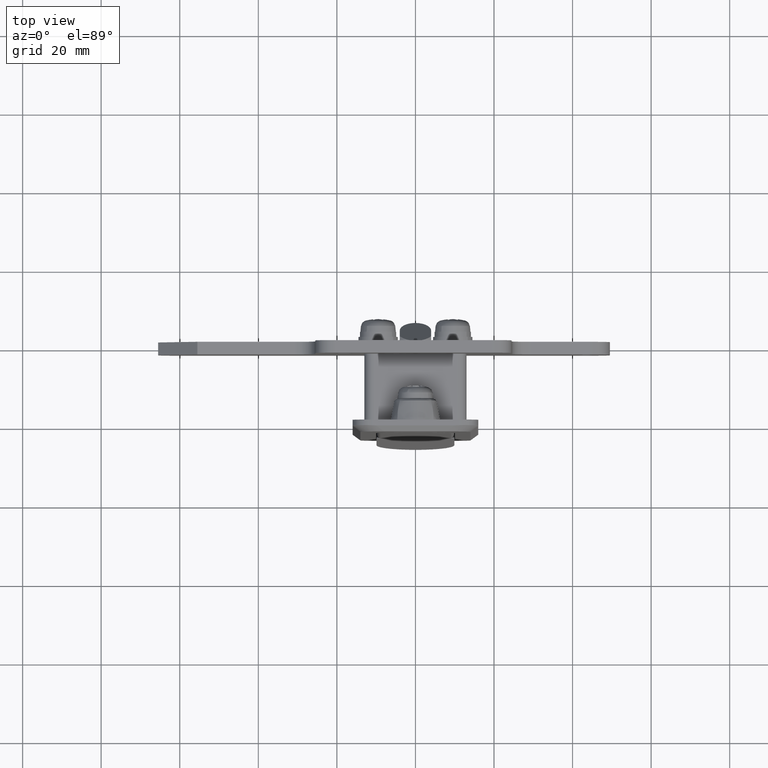
[diagram: clean part render]
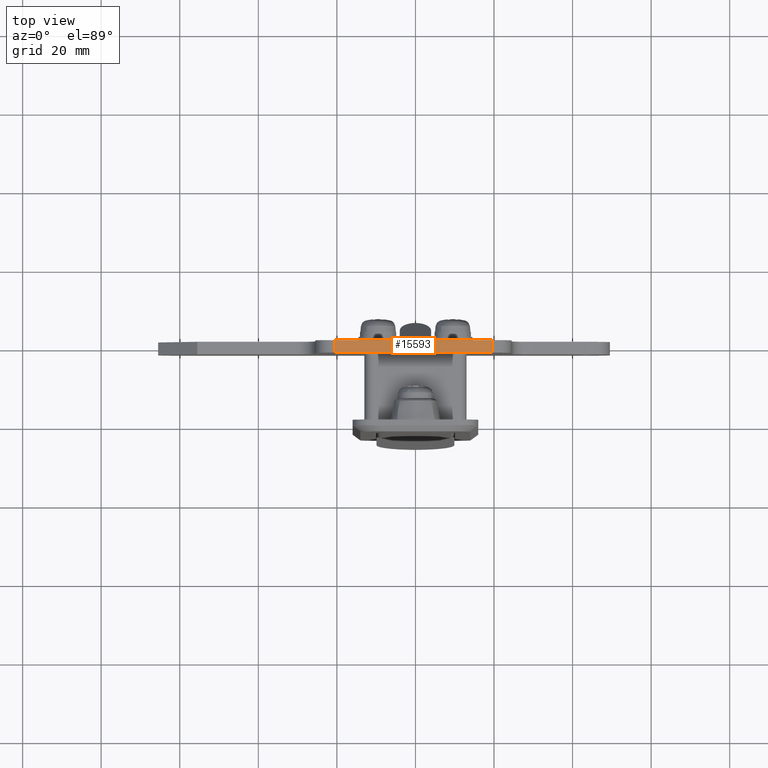
[diagram: same view with one face highlighted and labeled with its STEP entity id]
A machine part, top view. The second image highlights one B-rep face of the part: STEP entity #15593.
In plain terms, the highlighted face is a freeform B-spline surface patch.
Its self-contained STEP definition (entity closure, byte-faithful):
#15558=CARTESIAN_POINT('',(16.840159971904541,-21.497999922472239,8.0));
#15559=CARTESIAN_POINT('',(16.840159971904541,22.498000995355849,8.0));
#15560=CARTESIAN_POINT('',(20.359840800571909,-21.497999922472239,8.0));
#15561=CARTESIAN_POINT('',(20.359840800571909,22.498000995355849,8.0));
#15562=B_SPLINE_SURFACE_WITH_KNOTS('',1,1,((#15558,#15560),(#15559,#15561)),.UNSPECIFIED.,.F.,.F.,.U.,(2,2),(2,2),(0.0,43.996000917828077),(0.0,3.519680828667365),.UNSPECIFIED.);
#15563=CARTESIAN_POINT('',(17.000000000000249,20.500000000000000,8.0));
#15564=VERTEX_POINT('',#15563);
#15565=CARTESIAN_POINT('',(17.000000000000249,-19.500000000000000,8.0));
#15566=VERTEX_POINT('',#15565);
#15567=CARTESIAN_POINT('',(17.000000000000249,20.500000000000000,8.0));
#15568=CARTESIAN_POINT('',(17.000000000000249,-19.500000000000000,8.0));
#15569=QUASI_UNIFORM_CURVE('',1,(#15567,#15568),.UNSPECIFIED.,.F.,.U.);
#15570=EDGE_CURVE('',#15564,#15566,#15569,.T.);
#15571=ORIENTED_EDGE('',*,*,#15570,.T.);
#15572=CARTESIAN_POINT('',(20.199999999999999,-19.500000000000000,8.0));
#15573=VERTEX_POINT('',#15572);
#15574=CARTESIAN_POINT('',(20.199999999999999,-19.500000000000000,8.0));
#15575=CARTESIAN_POINT('',(17.000000000000249,-19.500000000000000,8.0));
#15576=QUASI_UNIFORM_CURVE('',1,(#15574,#15575),.UNSPECIFIED.,.F.,.U.);
#15577=EDGE_CURVE('',#15573,#15566,#15576,.T.);
#15578=ORIENTED_EDGE('',*,*,#15577,.F.);
#15579=CARTESIAN_POINT('',(20.199999999999999,20.500000000000000,8.0));
#15580=VERTEX_POINT('',#15579);
#15581=CARTESIAN_POINT('',(20.199999999999999,20.500000000000000,8.0));
#15582=CARTESIAN_POINT('',(20.199999999999999,-19.500000000000000,8.0));
#15583=QUASI_UNIFORM_CURVE('',1,(#15581,#15582),.UNSPECIFIED.,.F.,.U.);
#15584=EDGE_CURVE('',#15580,#15573,#15583,.T.);
#15585=ORIENTED_EDGE('',*,*,#15584,.F.);
#15586=CARTESIAN_POINT('',(20.199999999999999,20.500000000000000,8.0));
#15587=CARTESIAN_POINT('',(17.000000000000249,20.500000000000000,8.0));
#15588=QUASI_UNIFORM_CURVE('',1,(#15586,#15587),.UNSPECIFIED.,.F.,.U.);
#15589=EDGE_CURVE('',#15580,#15564,#15588,.T.);
#15590=ORIENTED_EDGE('',*,*,#15589,.T.);
#15591=EDGE_LOOP('',(#15571,#15578,#15585,#15590));
#15592=FACE_OUTER_BOUND('',#15591,.T.);
#15593=ADVANCED_FACE('',(#15592),#15562,.F.);